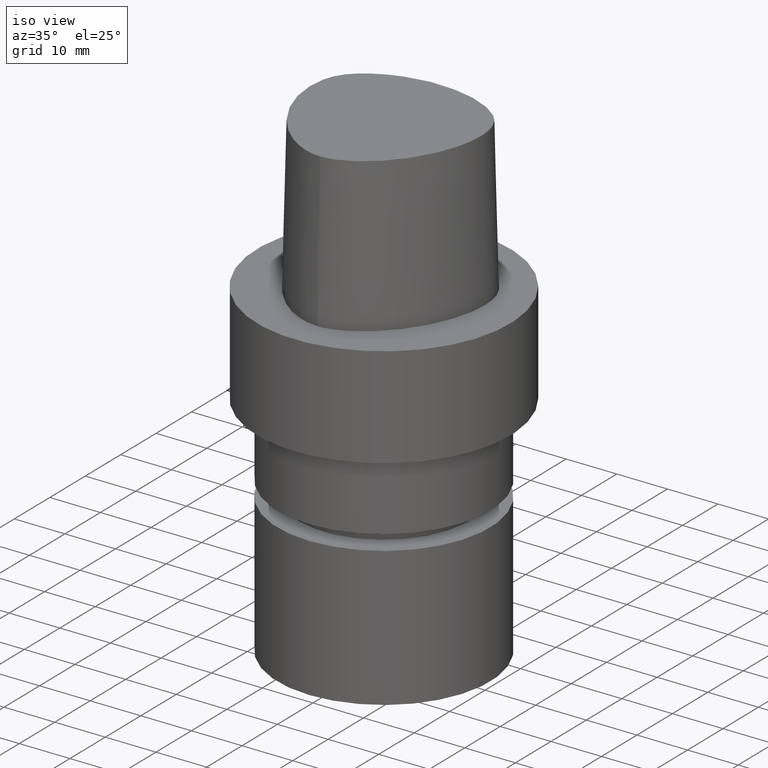
[diagram: clean part render]
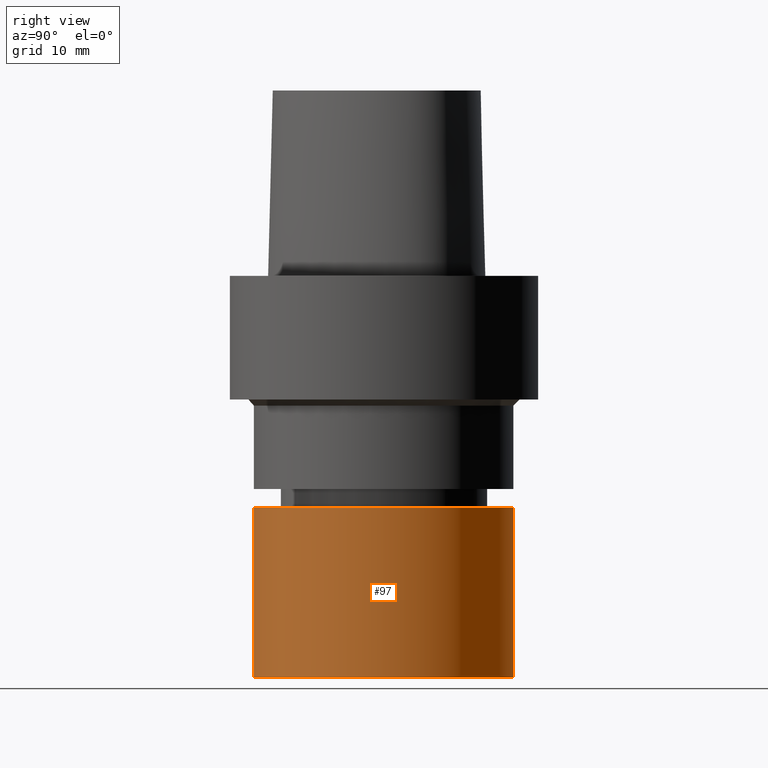
[diagram: tour spotlight — one face highlighted and labeled with its STEP entity id]
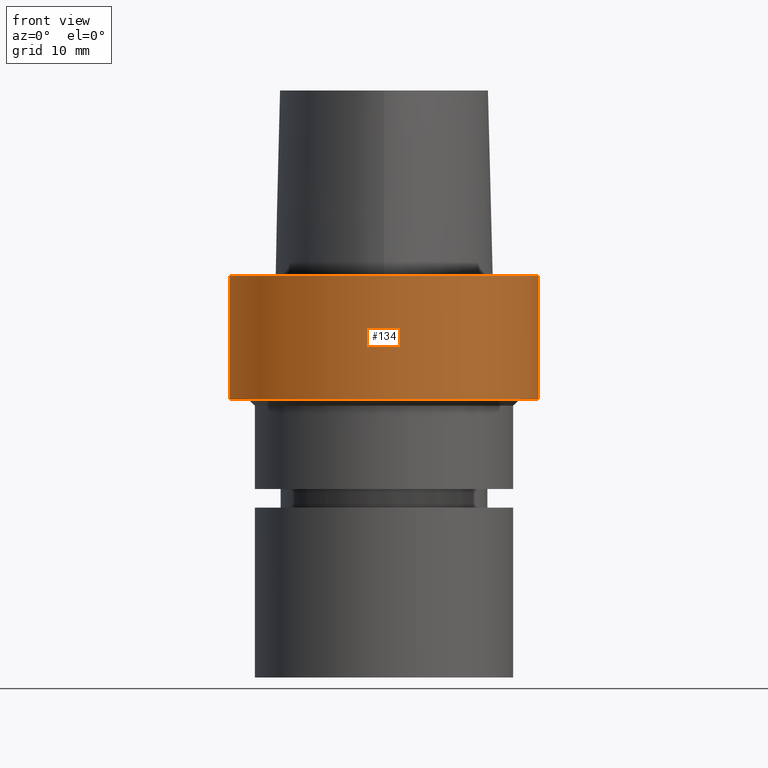
[diagram: tour spotlight — one face highlighted and labeled with its STEP entity id]
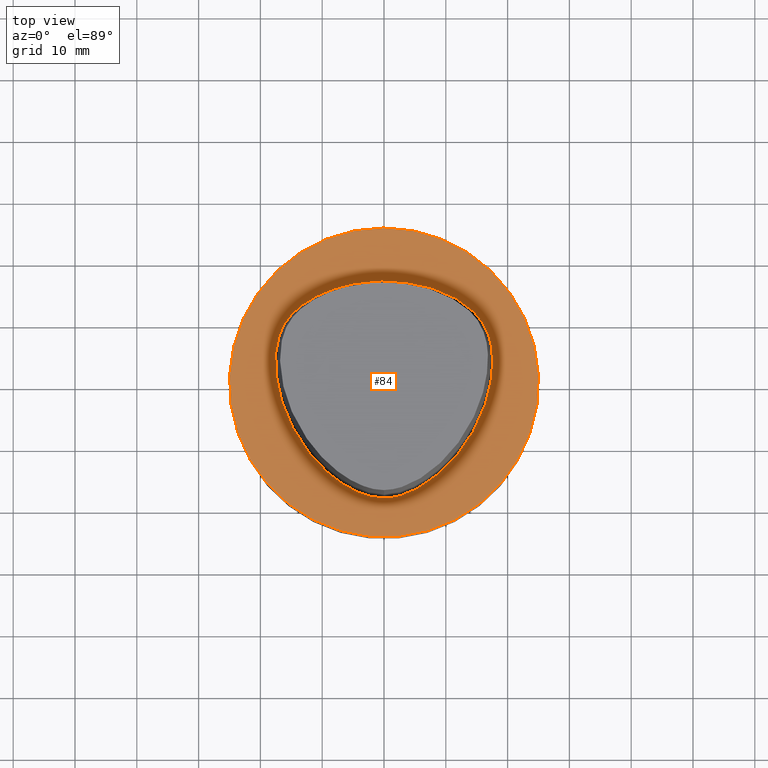
[diagram: tour spotlight — one face highlighted and labeled with its STEP entity id]
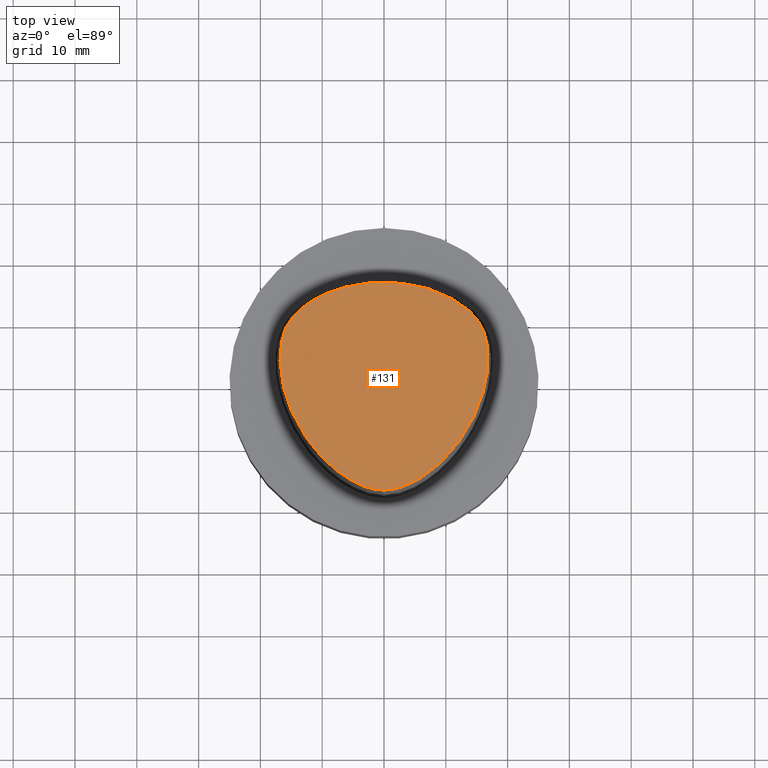
[diagram: tour spotlight — one face highlighted and labeled with its STEP entity id]
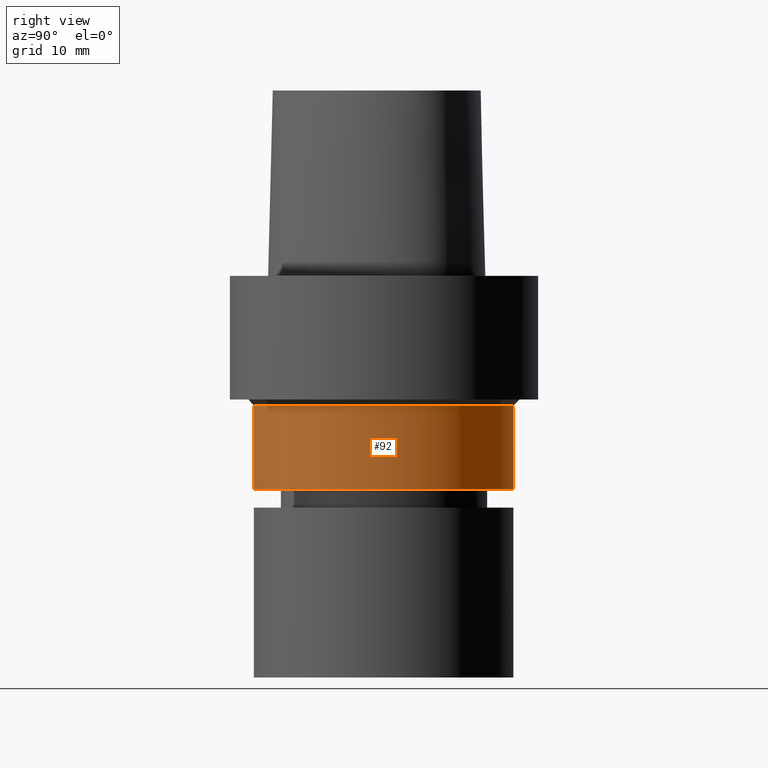
[diagram: tour spotlight — one face highlighted and labeled with its STEP entity id]
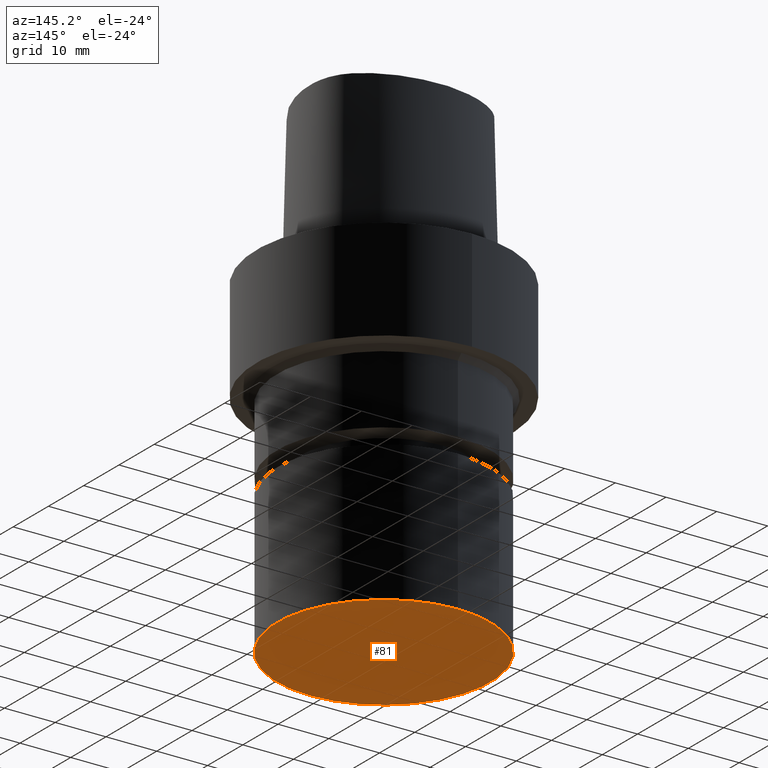
[diagram: tour spotlight — one face highlighted and labeled with its STEP entity id]
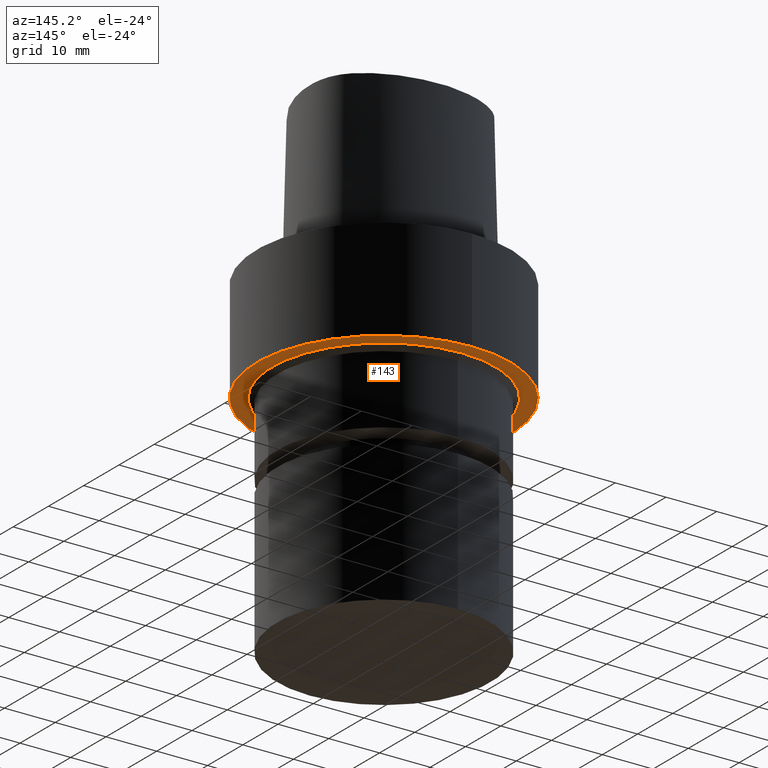
[diagram: tour spotlight — one face highlighted and labeled with its STEP entity id]
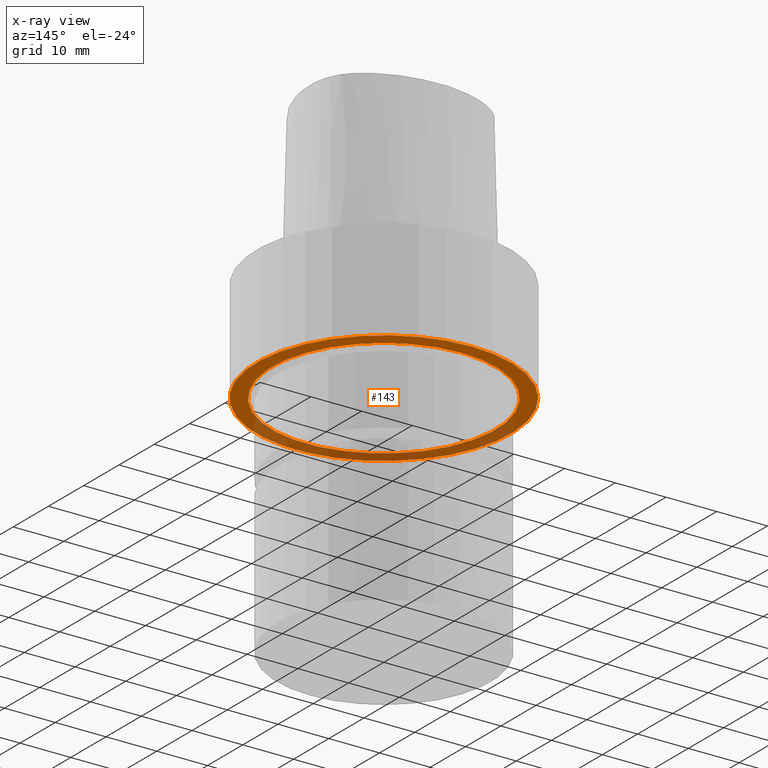
[diagram: x-ray of the same camera — body ghosted, this tour face saturated]
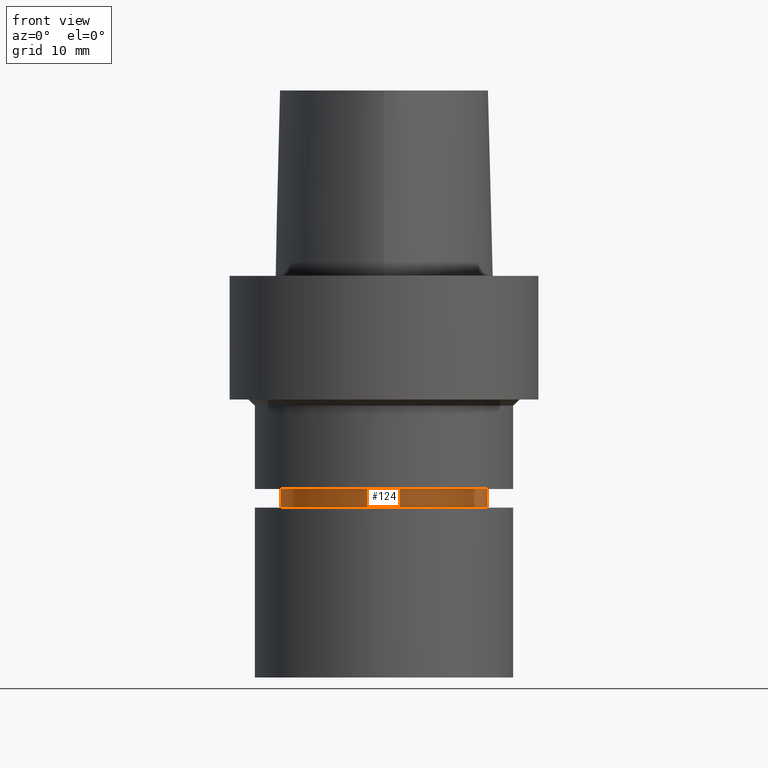
[diagram: tour spotlight — one face highlighted and labeled with its STEP entity id]
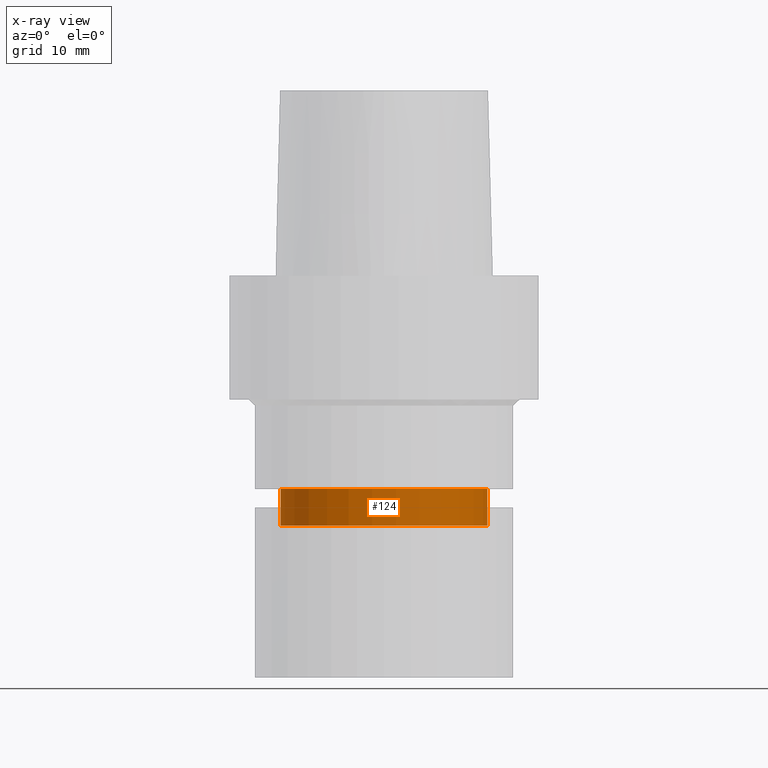
[diagram: x-ray of the same camera — body ghosted, this tour face saturated]
A machine part: a face-by-face anatomy tour. The part has 16 B-rep faces; the first image is the clean iso view, then the 8 largest visible faces are spotlighted one at a time (largest first), each with its STEP entity span.

Face 1 — right view, entity #97. In plain terms, the highlighted cylindrical surface (bore or boss wall) has radius 21 mm, axis along (0, 0, -1).
Definition (entity closure, byte-faithful):
#74=EDGE_CURVE('Unnamed[1]',#182,#182,#183,.T.);
#97=ADVANCED_FACE('Unnamed[1]',(#217,#218),#219,.T.);
#114=EDGE_CURVE('Unnamed[1]',#242,#242,#243,.T.);
#182=VERTEX_POINT('',#322);
#183=CIRCLE('',#323,21.0);
#217=FACE_BOUND('',#366,.T.);
#218=FACE_BOUND('',#367,.T.);
#219=CYLINDRICAL_SURFACE('',#368,21.0);
#242=VERTEX_POINT('',#783);
#243=CIRCLE('',#784,21.0);
#322=CARTESIAN_POINT('',(3.9801020972289E-015,21.0,-65.0));
#323=AXIS2_PLACEMENT_3D('',#1005,#1006,#1007);
#366=EDGE_LOOP('',(#1044));
#367=EDGE_LOOP('',(#1045));
#368=AXIS2_PLACEMENT_3D('',#1046,#1047,#1048);
#783=CARTESIAN_POINT('',(2.29621274840129E-015,21.0,-37.5));
#784=AXIS2_PLACEMENT_3D('',#1066,#1067,#1068);
#1005=CARTESIAN_POINT('',(3.9801020972289E-015,7.96020419445779E-015,-65.0));
#1006=DIRECTION('',(6.12323399573677E-017,1.22464679914735E-016,-1.0));
#1007=DIRECTION('',(-1.23259516440783E-032,1.0,1.22464679914735E-016));
#1044=ORIENTED_EDGE('',*,*,#74,.F.);
#1045=ORIENTED_EDGE('',*,*,#114,.T.);
#1046=CARTESIAN_POINT('',(3.13815742281509E-015,6.27631484563018E-015,-51.25));
#1047=DIRECTION('',(6.12323399573677E-017,1.22464679914735E-016,-1.0));
#1048=DIRECTION('',(-1.23259516440783E-032,1.0,1.22464679914735E-016));
#1066=CARTESIAN_POINT('',(2.29621274840129E-015,4.59242549680257E-015,-37.5));
#1067=DIRECTION('',(6.12323399573677E-017,1.22464679914735E-016,-1.0));
#1068=DIRECTION('',(-1.23259516440783E-032,1.0,1.22464679914735E-016));

Face 2 — front view, entity #134. In plain terms, the highlighted cylindrical surface (bore or boss wall) has radius 25 mm, axis along (0, 0, -1).
Definition (entity closure, byte-faithful):
#76=EDGE_CURVE('Unnamed[1]',#185,#185,#186,.T.);
#118=EDGE_CURVE('Unnamed[1]',#248,#248,#249,.T.);
#134=ADVANCED_FACE('Unnamed[1]',(#268,#269),#270,.T.);
#185=VERTEX_POINT('',#326);
#186=CIRCLE('',#327,25.0);
#248=VERTEX_POINT('',#791);
#249=CIRCLE('',#792,25.0);
#268=FACE_BOUND('',#959,.T.);
#269=FACE_BOUND('',#960,.T.);
#270=CYLINDRICAL_SURFACE('',#961,25.0);
#326=CARTESIAN_POINT('',(-3.08148791101958E-031,25.0,3.06161699786838E-015));
#327=AXIS2_PLACEMENT_3D('',#1008,#1009,#1010);
#791=CARTESIAN_POINT('',(1.22464679914735E-015,25.0,-20.0));
#792=AXIS2_PLACEMENT_3D('',#1072,#1073,#1074);
#959=EDGE_LOOP('',(#1088));
#960=EDGE_LOOP('',(#1089));
#961=AXIS2_PLACEMENT_3D('',#1090,#1091,#1092);
#1008=CARTESIAN_POINT('',(0.0,0.0,0.0));
#1009=DIRECTION('',(6.12323399573677E-017,1.22464679914735E-016,-1.0));
#1010=DIRECTION('',(-1.23259516440783E-032,1.0,1.22464679914735E-016));
#1072=CARTESIAN_POINT('',(1.22464679914735E-015,2.44929359829471E-015,-20.0));
#1073=DIRECTION('',(6.12323399573677E-017,1.22464679914735E-016,-1.0));
#1074=DIRECTION('',(-1.23259516440783E-032,1.0,1.22464679914735E-016));
#1088=ORIENTED_EDGE('',*,*,#118,.F.);
#1089=ORIENTED_EDGE('',*,*,#76,.T.);
#1090=CARTESIAN_POINT('',(6.12323399573677E-016,1.22464679914735E-015,-10.0));
#1091=DIRECTION('',(6.12323399573677E-017,1.22464679914735E-016,-1.0));
#1092=DIRECTION('',(-1.23259516440783E-032,1.0,1.22464679914735E-016));

Face 3 — top view, entity #84. In plain terms, the highlighted planar face has unit normal (-0, -0, 1).
Definition (entity closure, byte-faithful):
#76=EDGE_CURVE('Unnamed[1]',#185,#185,#186,.T.);
#84=ADVANCED_FACE('Unnamed[1]',(#196,#197),#198,.T.);
#126=EDGE_CURVE('Unnamed[1]',#234,#234,#259,.T.);
#185=VERTEX_POINT('',#326);
#186=CIRCLE('',#327,25.0);
#196=FACE_BOUND('',#340,.T.);
#197=FACE_OUTER_BOUND('',#341,.T.);
#198=PLANE('',#342);
#234=VERTEX_POINT('',#387);
#259=B_SPLINE_CURVE_WITH_KNOTS('',3,(#804,#805,#806,#807,#808,#809,#810,#811,#812,#813,#814,#815,#816,#817,#818,#819,#820,#821,#822,#823,#824,#825,#826,#827,#828,#829,#830,#831,#832,#833,#834,#835,#836,#837,#838,#839,#840,#841,#842,#843,#844,#845,#846,#847,#848,#849,#850,#851,#852,#853,#854,#855,#856,#857,#858,#859,#860,#861,#862,#863,#864,#865,#866,#867,#868,#869,#870,#871,#872,#873,#874,#875,#876,#877,#878,#879,#880,#881,#882,#883,#884,#885,#886,#887,#888,#889,#890,#891,#892,#893,#894,#895,#896,#897,#898,#899),.UNSPECIFIED.,.T.,.F.,(4,2,2,2,2,2,2,2,2,2,2,2,2,2,2,2,2,2,2,2,2,2,2,2,2,2,2,2,2,2,2,2,2,2,2,2,2,2,2,2,2,2,2,2,2,2,2,4),(0.0,0.000251979175567,0.023135829350767,0.046149078767971,0.068686553945372,0.09058948843834,0.11187442371895,0.132659030725504,0.153111474090064,0.173428097006866,0.193812703683075,0.214465113334926,0.235566638619369,0.257256396596226,0.279590584305387,0.302476275092963,0.325611612149197,0.348735785989546,0.371826971229282,0.39455923139207,0.416669726533691,0.438154204641074,0.459103554741756,0.479643077908811,0.50010643098029,0.520399705216369,0.54092682403315,0.561890845659905,0.583370991138857,0.605476574502583,0.62820876493626,0.65131550684809,0.674427687768046,0.697531018602722,0.720425222070344,0.742763449220249,0.764449723968905,0.785551037463572,0.806204240231889,0.826588983931571,0.846905402970388,0.867357715119018,0.88814171778586,0.909429413217286,0.931324749020081,0.953885589892717,0.976862732393428,1.0),.UNSPECIFIED.);
#326=CARTESIAN_POINT('',(-3.08148791101958E-031,25.0,3.06161699786838E-015));
#327=AXIS2_PLACEMENT_3D('',#1008,#1009,#1010);
#340=EDGE_LOOP('',(#1020));
#341=EDGE_LOOP('',(#1021));
#342=AXIS2_PLACEMENT_3D('',#1022,#1023,#1024);
#387=CARTESIAN_POINT('',(-0.00144332333831829,-18.693734925237,1.58949405722709E-031));
#804=CARTESIAN_POINT('',(-0.00144332333831829,-18.693734925237,1.58949405722709E-031));
#805=CARTESIAN_POINT('',(-0.0107097733408023,-18.6937739851458,1.18444691579815E-031));
#806=CARTESIAN_POINT('',(-0.0199759398304303,-18.6937986220233,1.90667064494336E-031));
#807=CARTESIAN_POINT('',(-0.87073259155424,-18.6947332287258,-2.46519032881566E-032));
#808=CARTESIAN_POINT('',(-1.7132146687811,-18.5561236138986,-1.72563323017096E-031));
#809=CARTESIAN_POINT('',(-3.34678034951543,-18.1076178270182,1.23259516440783E-031));
#810=CARTESIAN_POINT('',(-4.13763295357352,-17.7966649911857,0.0));
#811=CARTESIAN_POINT('',(-5.64401230436313,-17.0611782657116,-1.4791141972894E-031));
#812=CARTESIAN_POINT('',(-6.36074874666199,-16.6390568826018,9.86076131526265E-032));
#813=CARTESIAN_POINT('',(-7.71193183747336,-15.717785465073,-9.86076131526265E-032));
#814=CARTESIAN_POINT('',(-8.34816817062737,-15.221133209089,-1.97215226305253E-031));
#815=CARTESIAN_POINT('',(-9.54864267958622,-14.1801662707339,0.0));
#816=CARTESIAN_POINT('',(-10.1143778244459,-13.6375391489888,-9.86076131526265E-032));
#817=CARTESIAN_POINT('',(-11.1785439970871,-12.5139706700162,-9.86076131526265E-032));
#818=CARTESIAN_POINT('',(-11.6782474581115,-11.9342299113078,0.0));
#819=CARTESIAN_POINT('',(-12.6162342990191,-10.7421055435185,-1.97215226305253E-031));
#820=CARTESIAN_POINT('',(-13.055371557502,-10.1303892417647,0.0));
#821=CARTESIAN_POINT('',(-13.8770457728377,-8.87590863790404,9.86076131526265E-032));
#822=CARTESIAN_POINT('',(-14.2599388402702,-8.2333768267112,-9.86076131526265E-032));
#823=CARTESIAN_POINT('',(-14.97168833234,-6.91623888397976,1.97215226305253E-031));
#824=CARTESIAN_POINT('',(-15.3003608122286,-6.24153310972228,0.0));
#825=CARTESIAN_POINT('',(-15.9019181796067,-4.85709547419161,0.0));
#826=CARTESIAN_POINT('',(-16.1740130050164,-4.14701882283056,1.97215226305253E-031));
#827=CARTESIAN_POINT('',(-16.6580397097976,-2.68928374551173,0.0));
#828=CARTESIAN_POINT('',(-16.8685476043865,-1.9411430240201,0.0));
#829=CARTESIAN_POINT('',(-17.2177110849312,-0.406254182783721,0.0));
#830=CARTESIAN_POINT('',(-17.3541927925624,0.380994664903646,0.0));
#831=CARTESIAN_POINT('',(-17.5416073974851,1.99022033864964,0.0));
#832=CARTESIAN_POINT('',(-17.5899626525416,2.81255460248461,0.0));
#833=CARTESIAN_POINT('',(-17.563584952533,4.47617713465644,0.0));
#834=CARTESIAN_POINT('',(-17.4857707493695,5.31746225938347,0.0));
#835=CARTESIAN_POINT('',(-17.1712152948197,6.98496502795616,0.0));
#836=CARTESIAN_POINT('',(-16.932846471387,7.81104073212088,0.0));
#837=CARTESIAN_POINT('',(-16.2234989303146,9.36022258130064,0.0));
#838=CARTESIAN_POINT('',(-15.7525288634429,10.0833544868442,0.0));
#839=CARTESIAN_POINT('',(-14.6462939775209,11.3794173305263,0.0));
#840=CARTESIAN_POINT('',(-14.0112703709932,11.9525998966018,0.0));
#841=CARTESIAN_POINT('',(-12.6649577858213,12.9708269345166,0.0));
#842=CARTESIAN_POINT('',(-11.9549187103733,13.4176956956896,9.86076131526265E-032));
#843=CARTESIAN_POINT('',(-10.5004911910335,14.1970175551563,0.0));
#844=CARTESIAN_POINT('',(-9.7575533569854,14.5322819629711,-9.86076131526265E-032));
#845=CARTESIAN_POINT('',(-8.26254539063019,15.1133265717584,-9.86076131526265E-032));
#846=CARTESIAN_POINT('',(-7.51128946075537,15.3613193072948,-9.86076131526265E-032));
#847=CARTESIAN_POINT('',(-6.00522655029125,15.7739014771636,0.0));
#848=CARTESIAN_POINT('',(-5.25098149060303,15.940365829473,4.93038065763132E-032));
#849=CARTESIAN_POINT('',(-3.74452370137136,16.1783002530882,4.93038065763132E-032));
#850=CARTESIAN_POINT('',(-2.9925639102356,16.2517640462219,-1.97215226305253E-031));
#851=CARTESIAN_POINT('',(-1.48914620895443,16.3898646921674,-1.84889274661175E-031));
#852=CARTESIAN_POINT('',(-0.737689844422075,16.454322887119,1.84889274661175E-031));
#853=CARTESIAN_POINT('',(0.759326987696435,16.4536103338567,6.77927340424307E-032));
#854=CARTESIAN_POINT('',(1.50487089700432,16.3916719627081,-1.97215226305253E-031));
#855=CARTESIAN_POINT('',(3.00152605278829,16.2529050894156,-7.39557098644699E-032));
#856=CARTESIAN_POINT('',(3.75259609178933,16.1756990011092,-9.86076131526265E-032));
#857=CARTESIAN_POINT('',(5.25866006360267,15.9348272624441,-1.4791141972894E-031));
#858=CARTESIAN_POINT('',(6.01339669607053,15.7693347335975,1.4791141972894E-031));
#859=CARTESIAN_POINT('',(7.52174791015443,15.3636385273713,0.0));
#860=CARTESIAN_POINT('',(8.27488011859475,15.1217203315759,0.0));
#861=CARTESIAN_POINT('',(9.77128987676661,14.5452319544132,9.86076131526265E-032));
#862=CARTESIAN_POINT('',(10.5136604457977,14.20816965576,0.0));
#863=CARTESIAN_POINT('',(11.9637825858721,13.4211978486476,-9.86076131526265E-032));
#864=CARTESIAN_POINT('',(12.6699581239128,12.9683397391863,1.97215226305253E-031));
#865=CARTESIAN_POINT('',(14.0107896940302,11.9417697294217,0.0));
#866=CARTESIAN_POINT('',(14.6441161661191,11.3662092641098,0.0));
#867=CARTESIAN_POINT('',(15.7473444143777,10.0678607932392,-1.97215226305253E-031));
#868=CARTESIAN_POINT('',(16.2172279070315,9.34515014826243,0.0));
#869=CARTESIAN_POINT('',(16.9299748942786,7.79911649806176,-1.97215226305253E-031));
#870=CARTESIAN_POINT('',(17.1732678868715,6.97591096726165,0.0));
#871=CARTESIAN_POINT('',(17.4947165291087,5.31078187777496,0.0));
#872=CARTESIAN_POINT('',(17.5742122859752,4.46891080588121,0.0));
#873=CARTESIAN_POINT('',(17.5984503582426,2.80469955056706,0.0));
#874=CARTESIAN_POINT('',(17.5464797751086,1.98232636532396,0.0));
#875=CARTESIAN_POINT('',(17.3530324455179,0.373802434650424,0.0));
#876=CARTESIAN_POINT('',(17.2140873477037,-0.412741037255912,0.0));
#877=CARTESIAN_POINT('',(16.8640679933744,-1.94732109648072,0.0));
#878=CARTESIAN_POINT('',(16.6550051401061,-2.69581759912329,0.0));
#879=CARTESIAN_POINT('',(16.1721668251879,-4.15391144824405,0.0));
#880=CARTESIAN_POINT('',(15.8998720313717,-4.86400476772738,0.0));
#881=CARTESIAN_POINT('',(15.2976461182969,-6.24821889850589,0.0));
#882=CARTESIAN_POINT('',(14.9685089040774,-6.9226902547916,0.0));
#883=CARTESIAN_POINT('',(14.2562315235154,-8.23953226144279,0.0));
#884=CARTESIAN_POINT('',(13.8732695848357,-8.88199998589755,0.0));
#885=CARTESIAN_POINT('',(13.0515094984057,-10.1364217212122,0.0));
#886=CARTESIAN_POINT('',(12.612354568037,-10.7481421677501,0.0));
#887=CARTESIAN_POINT('',(11.6737441165097,-11.9397215871539,0.0));
#888=CARTESIAN_POINT('',(11.1734254860308,-12.5189032007719,0.0));
#889=CARTESIAN_POINT('',(10.1074745701417,-13.640998338336,-9.86076131526265E-032));
#890=CARTESIAN_POINT('',(9.54055189248609,-14.182694679151,0.0));
#891=CARTESIAN_POINT('',(8.33747886858352,-15.2200706351975,-9.86076131526265E-032));
#892=CARTESIAN_POINT('',(7.69981598148188,-15.7139994399403,0.0));
#893=CARTESIAN_POINT('',(6.35130494327661,-16.6404483507205,-4.93038065763132E-032));
#894=CARTESIAN_POINT('',(5.6388427285293,-17.0707143827691,-9.86076131526265E-032));
#895=CARTESIAN_POINT('',(4.1368842572046,-17.8149844980219,-9.86076131526265E-032));
#896=CARTESIAN_POINT('',(3.3461818724523,-18.1267181400899,2.46519032881566E-032));
#897=CARTESIAN_POINT('',(1.70267749900168,-18.5649567925168,1.72563323017096E-031));
#898=CARTESIAN_POINT('',(0.849421963398066,-18.6901483607448,0.0));
#899=CARTESIAN_POINT('',(-0.00144332333831829,-18.693734925237,1.58949405722709E-031));
#1008=CARTESIAN_POINT('',(0.0,0.0,0.0));
#1009=DIRECTION('',(6.12323399573677E-017,1.22464679914735E-016,-1.0));
#1010=DIRECTION('',(-1.23259516440783E-032,1.0,1.22464679914735E-016));
#1020=ORIENTED_EDGE('',*,*,#126,.T.);
#1021=ORIENTED_EDGE('',*,*,#76,.F.);
#1022=CARTESIAN_POINT('',(-1.54074395550979E-031,12.5,1.53080849893419E-015));
#1023=DIRECTION('',(-6.12323399573677E-017,-1.22464679914735E-016,1.0));
#1024=DIRECTION('',(1.23259516440783E-032,-1.0,-1.22464679914735E-016));

Face 4 — top view, entity #131. In plain terms, the highlighted planar face has unit normal (-0, 0, 1).
Definition (entity closure, byte-faithful):
#128=EDGE_CURVE('Unnamed[1]',#235,#235,#261,.T.);
#131=ADVANCED_FACE('Unnamed[1]',(#264),#265,.T.);
#235=VERTEX_POINT('',#388);
#261=B_SPLINE_CURVE_WITH_KNOTS('',3,(#902,#903,#904,#905,#906,#907,#908,#909,#910,#911,#912,#913,#914,#915,#916,#917,#918,#919,#920,#921,#922,#923,#924,#925,#926,#927,#928,#929,#930,#931,#932,#933,#934,#935,#936,#937,#938,#939,#940,#941,#942,#943,#944,#945,#946,#947,#948,#949,#950),.UNSPECIFIED.,.T.,.F.,(4,1,1,1,1,1,1,1,1,1,1,1,1,1,1,1,1,1,1,1,1,1,1,1,1,1,1,1,1,1,1,1,1,1,1,1,1,1,1,1,1,1,1,1,1,1,4),(0.0,0.023135829350767,0.046149078767971,0.068686553945372,0.09058948843834,0.11187442371895,0.132659030725504,0.153111474090064,0.173428097006866,0.193812703683075,0.214465113334926,0.235566638619369,0.257256396596226,0.279590584305387,0.302476275092963,0.325611612149197,0.348735785989546,0.371826971229282,0.39455923139207,0.416669726533691,0.438154204641074,0.459103554741756,0.479643077908811,0.50010643098029,0.520399705216369,0.54092682403315,0.561890845659905,0.583370991138857,0.605476574502583,0.62820876493626,0.65131550684809,0.674427687768046,0.697531018602722,0.720425222070344,0.742763449220249,0.764449723968905,0.785551037463572,0.806204240231889,0.826588983931571,0.846905402970388,0.867357715119018,0.88814171778586,0.909429413217286,0.931324749020081,0.953885589892717,0.976862732393428,1.0),.UNSPECIFIED.);
#264=FACE_OUTER_BOUND('',#954,.T.);
#265=PLANE('',#955);
#388=CARTESIAN_POINT('',(-2.78602932413959E-015,-17.9423775546504,30.0));
#902=CARTESIAN_POINT('',(-2.78602932413959E-015,-17.9423775546504,30.0));
#903=CARTESIAN_POINT('',(-0.814120797978075,-17.9643878187761,30.0));
#904=CARTESIAN_POINT('',(-2.44279318309434,-17.6670056599032,30.0));
#905=CARTESIAN_POINT('',(-4.69065600148019,-16.7591312239375,30.0));
#906=CARTESIAN_POINT('',(-6.73157621234646,-15.527654017863,30.0));
#907=CARTESIAN_POINT('',(-8.55606567082544,-14.0980586872352,30.0));
#908=CARTESIAN_POINT('',(-10.1771160862307,-12.5294920614813,30.0));
#909=CARTESIAN_POINT('',(-11.6098311271326,-10.8549672983455,30.0));
#910=CARTESIAN_POINT('',(-12.8723444784573,-9.09084166630711,30.0));
#911=CARTESIAN_POINT('',(-13.9762474627415,-7.23982146073079,30.0));
#912=CARTESIAN_POINT('',(-14.9241349859217,-5.29636298798721,30.0));
#913=CARTESIAN_POINT('',(-15.7132736469777,-3.2533357158659,30.0));
#914=CARTESIAN_POINT('',(-16.3266313043064,-1.10238675181427,30.0));
#915=CARTESIAN_POINT('',(-16.7327867713303,1.15808256309649,30.0));
#916=CARTESIAN_POINT('',(-16.8801613787167,3.51564121263174,30.0));
#917=CARTESIAN_POINT('',(-16.6855836228514,5.92229128835704,30.0));
#918=CARTESIAN_POINT('',(-16.0281509658443,8.29517868854449,30.0));
#919=CARTESIAN_POINT('',(-14.6640408300166,10.3669104243273,30.0));
#920=CARTESIAN_POINT('',(-12.8332969997264,11.9882678763451,30.0));
#921=CARTESIAN_POINT('',(-10.7856401290832,13.2404482750702,30.0));
#922=CARTESIAN_POINT('',(-8.65298741417579,14.19764142693,30.0));
#923=CARTESIAN_POINT('',(-6.48957622042645,14.9235651413533,30.0));
#924=CARTESIAN_POINT('',(-4.30784954842127,15.2925809723717,30.0));
#925=CARTESIAN_POINT('',(-2.16867899857279,15.8525920055235,30.0));
#926=CARTESIAN_POINT('',(-0.0054980597270801,15.506533819507,30.0));
#927=CARTESIAN_POINT('',(2.15423811148254,15.6758925558313,30.0));
#928=CARTESIAN_POINT('',(4.31367631773855,15.3366483013887,30.0));
#929=CARTESIAN_POINT('',(6.49156913463884,14.9221231752341,30.0));
#930=CARTESIAN_POINT('',(8.65317555043793,14.199841033848,30.0));
#931=CARTESIAN_POINT('',(10.7855591317115,13.2388028674922,30.0));
#932=CARTESIAN_POINT('',(12.8289446834375,11.9844078416963,30.0));
#933=CARTESIAN_POINT('',(14.6809214389867,10.37934328945,30.0));
#934=CARTESIAN_POINT('',(15.9964040236072,8.28000660116028,30.0));
#935=CARTESIAN_POINT('',(16.6999197177274,5.92601467018833,30.0));
#936=CARTESIAN_POINT('',(16.8785470495877,3.51485696104406,30.0));
#937=CARTESIAN_POINT('',(16.7308989568545,1.15864914401017,30.0));
#938=CARTESIAN_POINT('',(16.3270119409732,-1.10262794482627,30.0));
#939=CARTESIAN_POINT('',(15.7138840293007,-3.25349612648562,30.0));
#940=CARTESIAN_POINT('',(14.9244427410538,-5.29647704660135,30.0));
#941=CARTESIAN_POINT('',(13.9756636589241,-7.23950698099948,30.0));
#942=CARTESIAN_POINT('',(12.8724663956831,-9.09088034657936,30.0));
#943=CARTESIAN_POINT('',(11.6099597844916,-10.8551381410581,30.0));
#944=CARTESIAN_POINT('',(10.1759690661341,-12.5282962499649,30.0));
#945=CARTESIAN_POINT('',(8.55887653552809,-14.1013446755591,30.0));
#946=CARTESIAN_POINT('',(6.72595297076831,-15.5205541881092,30.0));
#947=CARTESIAN_POINT('',(4.69995925068727,-16.7729025475684,30.0));
#948=CARTESIAN_POINT('',(2.43523789305481,-17.660279021922,30.0));
#949=CARTESIAN_POINT('',(0.814171408394767,-17.9203659222405,30.0));
#950=CARTESIAN_POINT('',(-2.83508942413959E-015,-17.9423775546504,30.0));
#954=EDGE_LOOP('',(#1083));
#955=AXIS2_PLACEMENT_3D('',#1084,#1085,#1086);
#1083=ORIENTED_EDGE('',*,*,#128,.F.);
#1084=CARTESIAN_POINT('',(-0.000657534264248203,-1.65575572608802,30.0));
#1085=DIRECTION('',(-0.0,2.95577857036584E-049,1.0));
#1086=DIRECTION('',(1.0,0.0,0.0));

Face 5 — right view, entity #92. In plain terms, the highlighted cylindrical surface (bore or boss wall) has radius 21 mm, axis along (0, 0, -1).
Definition (entity closure, byte-faithful):
#78=EDGE_CURVE('Unnamed[1]',#188,#188,#189,.T.);
#92=ADVANCED_FACE('Unnamed[1]',(#209,#210),#211,.T.);
#99=EDGE_CURVE('Unnamed[1]',#221,#221,#222,.T.);
#188=VERTEX_POINT('',#330);
#189=CIRCLE('',#331,21.0000000000003);
#209=FACE_BOUND('',#356,.T.);
#210=FACE_BOUND('',#357,.T.);
#211=CYLINDRICAL_SURFACE('',#358,21.0000000000003);
#221=VERTEX_POINT('',#371);
#222=CIRCLE('',#372,21.0000000000003);
#330=CARTESIAN_POINT('',(1.28587913910474E-015,21.0000000000003,-21.0000000000003));
#331=AXIS2_PLACEMENT_3D('',#1011,#1012,#1013);
#356=EDGE_LOOP('',(#1035));
#357=EDGE_LOOP('',(#1036));
#358=AXIS2_PLACEMENT_3D('',#1037,#1038,#1039);
#371=CARTESIAN_POINT('',(2.11251572852918E-015,21.0000000000003,-34.5));
#372=AXIS2_PLACEMENT_3D('',#1049,#1050,#1051);
#1011=CARTESIAN_POINT('',(1.28587913910474E-015,2.57175827820947E-015,-21.0000000000003));
#1012=DIRECTION('',(6.12323399573677E-017,1.22464679914735E-016,-1.0));
#1013=DIRECTION('',(-1.23259516440783E-032,1.0,1.22464679914735E-016));
#1035=ORIENTED_EDGE('',*,*,#99,.F.);
#1036=ORIENTED_EDGE('',*,*,#78,.T.);
#1037=CARTESIAN_POINT('',(1.69919743381696E-015,3.39839486763392E-015,-27.7500000000001));
#1038=DIRECTION('',(6.12323399573677E-017,1.22464679914735E-016,-1.0));
#1039=DIRECTION('',(-1.23259516440783E-032,1.0,1.22464679914735E-016));
#1049=CARTESIAN_POINT('',(2.11251572852918E-015,4.22503145705836E-015,-34.5));
#1050=DIRECTION('',(6.12323399573677E-017,1.22464679914735E-016,-1.0));
#1051=DIRECTION('',(-1.23259516440783E-032,1.0,1.22464679914735E-016));

Face 6 — auxiliary view, entity #81. In plain terms, the highlighted planar face has unit normal (0, 0, -1).
Definition (entity closure, byte-faithful):
#74=EDGE_CURVE('Unnamed[1]',#182,#182,#183,.T.);
#81=ADVANCED_FACE('Unnamed[1]',(#192),#193,.T.);
#182=VERTEX_POINT('',#322);
#183=CIRCLE('',#323,21.0);
#192=FACE_OUTER_BOUND('',#335,.T.);
#193=PLANE('',#336);
#322=CARTESIAN_POINT('',(3.9801020972289E-015,21.0,-65.0));
#323=AXIS2_PLACEMENT_3D('',#1005,#1006,#1007);
#335=EDGE_LOOP('',(#1015));
#336=AXIS2_PLACEMENT_3D('',#1016,#1017,#1018);
#1005=CARTESIAN_POINT('',(3.9801020972289E-015,7.96020419445779E-015,-65.0));
#1006=DIRECTION('',(6.12323399573677E-017,1.22464679914735E-016,-1.0));
#1007=DIRECTION('',(-1.23259516440783E-032,1.0,1.22464679914735E-016));
#1015=ORIENTED_EDGE('',*,*,#74,.T.);
#1016=CARTESIAN_POINT('',(3.9801020972289E-015,10.5,-65.0));
#1017=DIRECTION('',(6.12323399573677E-017,1.22464679914735E-016,-1.0));
#1018=DIRECTION('',(-1.23259516440783E-032,1.0,1.22464679914735E-016));

Face 7 — auxiliary view, entity #143. An x-ray twin of the same camera follows (body ghosted, this face saturated) — the face is partly hidden behind the body. In plain terms, the highlighted planar face has unit normal (0, 0, -1).
Definition (entity closure, byte-faithful):
#86=EDGE_CURVE('Unnamed[1]',#200,#200,#201,.T.);
#118=EDGE_CURVE('Unnamed[1]',#248,#248,#249,.T.);
#143=ADVANCED_FACE('Unnamed[1]',(#283,#284),#285,.T.);
#200=VERTEX_POINT('',#345);
#201=CIRCLE('',#346,22.0000000000006);
#248=VERTEX_POINT('',#791);
#249=CIRCLE('',#792,25.0);
#283=FACE_BOUND('',#977,.T.);
#284=FACE_OUTER_BOUND('',#978,.T.);
#285=PLANE('',#979);
#345=CARTESIAN_POINT('',(1.22464679914735E-015,22.0000000000006,-20.0));
#346=AXIS2_PLACEMENT_3D('',#1025,#1026,#1027);
#791=CARTESIAN_POINT('',(1.22464679914735E-015,25.0,-20.0));
#792=AXIS2_PLACEMENT_3D('',#1072,#1073,#1074);
#977=EDGE_LOOP('',(#1106));
#978=EDGE_LOOP('',(#1107));
#979=AXIS2_PLACEMENT_3D('',#1108,#1109,#1110);
#1025=CARTESIAN_POINT('',(1.22464679914735E-015,2.44929359829471E-015,-20.0));
#1026=DIRECTION('',(6.12323399573677E-017,1.22464679914735E-016,-1.0));
#1027=DIRECTION('',(-1.23259516440783E-032,1.0,1.22464679914735E-016));
#1072=CARTESIAN_POINT('',(1.22464679914735E-015,2.44929359829471E-015,-20.0));
#1073=DIRECTION('',(6.12323399573677E-017,1.22464679914735E-016,-1.0));
#1074=DIRECTION('',(-1.23259516440783E-032,1.0,1.22464679914735E-016));
#1106=ORIENTED_EDGE('',*,*,#86,.F.);
#1107=ORIENTED_EDGE('',*,*,#118,.T.);
#1108=CARTESIAN_POINT('',(1.22464679914735E-015,23.5000000000003,-20.0));
#1109=DIRECTION('',(6.12323399573677E-017,1.22464679914735E-016,-1.0));
#1110=DIRECTION('',(-1.23259516440783E-032,1.0,1.22464679914735E-016));

Face 8 — front view, entity #124. An x-ray twin of the same camera follows (body ghosted, this face saturated) — the face is partly hidden behind the body. In plain terms, the highlighted cylindrical surface (bore or boss wall) has radius 16.75 mm, axis along (0, 0, -1).
Definition (entity closure, byte-faithful):
#104=EDGE_CURVE('Unnamed[1]',#228,#228,#229,.T.);
#124=ADVANCED_FACE('Unnamed[1]',(#255,#256),#257,.T.);
#145=EDGE_CURVE('Unnamed[1]',#287,#287,#288,.T.);
#228=VERTEX_POINT('',#380);
#229=CIRCLE('',#381,16.7500000000017);
#255=FACE_BOUND('',#799,.T.);
#256=FACE_BOUND('',#800,.T.);
#257=CYLINDRICAL_SURFACE('',#801,16.7499999999962);
#287=VERTEX_POINT('',#982);
#288=CIRCLE('',#983,16.7499999999907);
#380=CARTESIAN_POINT('',(2.47790899332347E-015,16.7500000000017,-40.4673248654009));
#381=AXIS2_PLACEMENT_3D('',#1057,#1058,#1059);
#799=EDGE_LOOP('',(#1077));
#800=EDGE_LOOP('',(#1078));
#801=AXIS2_PLACEMENT_3D('',#1079,#1080,#1081);
#982=CARTESIAN_POINT('',(2.11251572852914E-015,16.7499999999907,-34.4999999999992));
#983=AXIS2_PLACEMENT_3D('',#1111,#1112,#1113);
#1057=CARTESIAN_POINT('',(2.47790899332347E-015,4.95581798664693E-015,-40.4673248654009));
#1058=DIRECTION('',(6.12323399573677E-017,1.22464679914735E-016,-1.0));
#1059=DIRECTION('',(-1.23259516440783E-032,1.0,1.22464679914735E-016));
#1077=ORIENTED_EDGE('',*,*,#104,.F.);
#1078=ORIENTED_EDGE('',*,*,#145,.T.);
#1079=CARTESIAN_POINT('',(2.2952123609263E-015,4.5904247218526E-015,-37.4836624327001));
#1080=DIRECTION('',(6.12323399573676E-017,1.22464679914735E-016,-1.0));
#1081=DIRECTION('',(-1.23259516440783E-032,1.0,1.22464679914735E-016));
#1111=CARTESIAN_POINT('',(2.11251572852914E-015,4.22503145705827E-015,-34.4999999999992));
#1112=DIRECTION('',(6.12323399573677E-017,1.22464679914735E-016,-1.0));
#1113=DIRECTION('',(-1.23259516440783E-032,1.0,1.22464679914735E-016));